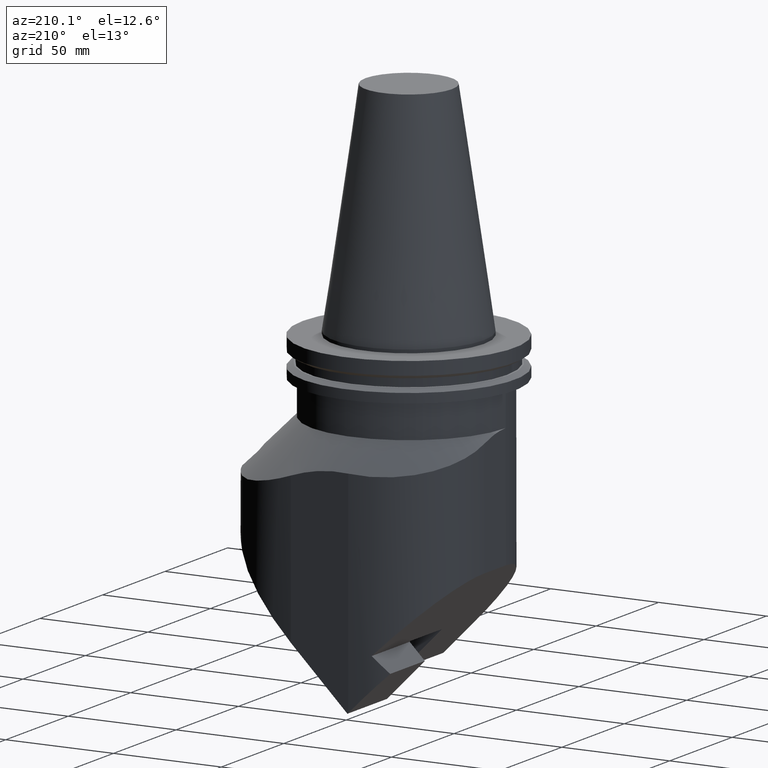
[diagram: clean part render]
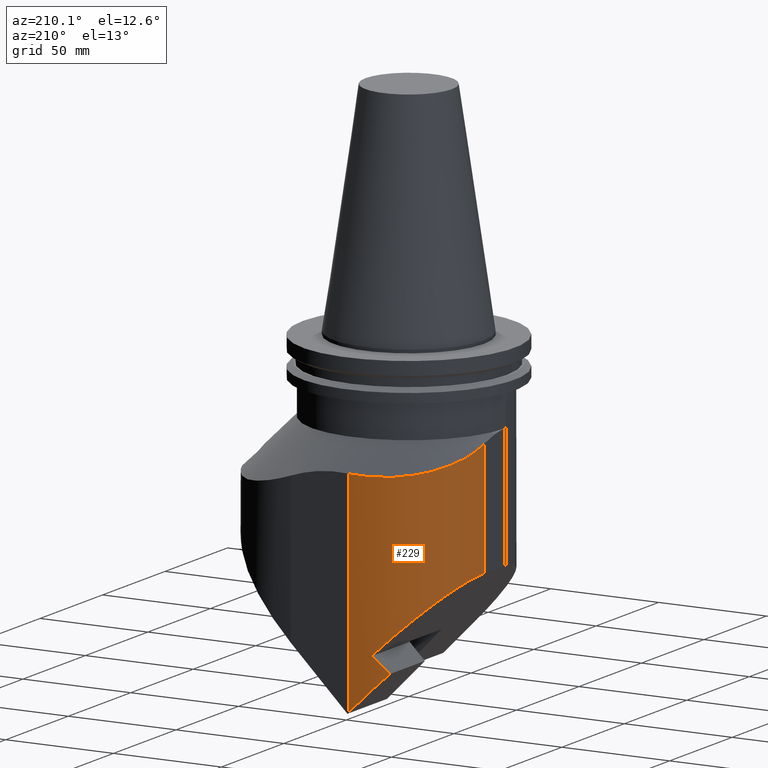
[diagram: same view with one face highlighted and labeled with its STEP entity id]
A machine part, auxiliary view. The second image highlights one B-rep face of the part: STEP entity #229.
In plain terms, the highlighted cylindrical surface (partial cylindrical patch) has radius 40 mm, axis along (-0, 0, 1).
Its self-contained STEP definition (entity closure, byte-faithful):
#145=EDGE_CURVE('Unnamed[1]',#400,#401,#402,.T.);
#158=EDGE_CURVE('Unnamed[1]',#401,#423,#424,.T.);
#218=EDGE_CURVE('Unnamed[1]',#423,#491,#511,.T.);
#220=EDGE_CURVE('Unnamed[1]',#385,#474,#513,.T.);
#229=ADVANCED_FACE('Unnamed[1]',(#524),#525,.T.);
#240=EDGE_CURVE('Unnamed[1]',#474,#491,#538,.T.);
#255=EDGE_CURVE('Unnamed[1]',#385,#400,#559,.T.);
#385=VERTEX_POINT('',#709);
#400=VERTEX_POINT('',#730);
#401=VERTEX_POINT('',#731);
#402=ELLIPSE('',#732,56.5685424481527,40.0);
#423=VERTEX_POINT('',#761);
#424=ELLIPSE('',#762,56.5685425032866,40.0);
#474=VERTEX_POINT('',#840);
#491=VERTEX_POINT('',#888);
#511=LINE('',#928,#929);
#513=LINE('',#932,#933);
#524=FACE_OUTER_BOUND('',#950,.T.);
#525=CYLINDRICAL_SURFACE('',#951,40.0);
#538=B_SPLINE_CURVE_WITH_KNOTS('',3,(#980,#981,#982,#983,#984,#985,#986,#987,#988,#989,#990,#991,#992,#993,#994,#995,#996,#997,#998,#999,#1000,#1001,#1002,#1003,#1004,#1005,#1006,#1007,#1008,#1009,#1010,#1011,#1012,#1013,#1014,#1015),.UNSPECIFIED.,.F.,.F.,(4,2,2,2,2,2,2,2,2,2,2,2,2,2,2,2,2,4),(49.8249751517833,53.7124989975215,57.6000228432597,61.4875466889979,65.3750705347361,69.2625943804743,73.1501182262125,77.0376420719508,80.925165917689,84.8126897634272,88.7002136091654,92.5877374549036,96.3861569452901,100.184576435677,103.982995926063,107.78141541645,111.579834906836,115.378254397223),.UNSPECIFIED.);
#559=ELLIPSE('',#1047,56.5685424949242,40.0);
#709=CARTESIAN_POINT('',(-4.999999999998,57.0,-145.600000000004));
#730=CARTESIAN_POINT('',(-22.2069588544695,53.1098403067713,-128.393041145533));
#731=CARTESIAN_POINT('',(-15.1358910394405,55.6944920219473,-121.321973342197));
#732=AXIS2_PLACEMENT_3D('',#1287,#1288,#1289);
#761=CARTESIAN_POINT('',(-44.9999999999966,17.0,-91.4578643728107));
#762=AXIS2_PLACEMENT_3D('',#1306,#1307,#1308);
#840=CARTESIAN_POINT('',(-4.99999999999801,57.0,-47.218878003681));
#888=CARTESIAN_POINT('',(-44.999999999998,17.0,-38.1040538832222));
#928=CARTESIAN_POINT('',(-44.999999999998,17.0,-306.209870642012));
#929=VECTOR('',#1389,1.0);
#932=CARTESIAN_POINT('',(-4.99999999999798,56.9999999999999,-306.209870642012));
#933=VECTOR('',#1390,1.0);
#950=EDGE_LOOP('',(#1397,#1398,#1399,#1400,#1401,#1402));
#951=AXIS2_PLACEMENT_3D('',#1403,#1404,#1405);
#980=CARTESIAN_POINT('',(-4.40626973575667,56.9955933119303,-47.1656616332161));
#981=CARTESIAN_POINT('',(-5.76712870551978,57.0157951163992,-47.2906969309906));
#982=CARTESIAN_POINT('',(-7.12660601409189,56.9662640778384,-47.3944755690024));
#983=CARTESIAN_POINT('',(-9.81804950965099,56.7317394081743,-47.5592427158982));
#984=CARTESIAN_POINT('',(-11.1501757868942,56.5467234916054,-47.6202392632312));
#985=CARTESIAN_POINT('',(-13.7628856880904,56.0509901993361,-47.7006424559277));
#986=CARTESIAN_POINT('',(-15.0434675382768,55.7402628338457,-47.7200451466702));
#987=CARTESIAN_POINT('',(-17.5298383810349,55.0089772918584,-47.7200451466702));
#988=CARTESIAN_POINT('',(-18.7747341153744,54.5769171324884,-47.7006424559277));
#989=CARTESIAN_POINT('',(-21.239798044042,53.5791875336219,-47.6202392632312));
#990=CARTESIAN_POINT('',(-22.4599701555355,53.0135274535038,-47.5592427158982));
#991=CARTESIAN_POINT('',(-24.8498118009833,51.7535564934607,-47.3944755690025));
#992=CARTESIAN_POINT('',(-26.0196279984941,51.0591776772915,-47.2906969309906));
#993=CARTESIAN_POINT('',(-28.2860767963145,49.5516662044288,-47.0406263354416));
#994=CARTESIAN_POINT('',(-29.3827117464047,48.7385372451752,-46.8943333851038));
#995=CARTESIAN_POINT('',(-31.4831133811026,47.0082669968052,-46.56094058224));
#996=CARTESIAN_POINT('',(-32.4879566509907,46.0902398826597,-46.3736669714299));
#997=CARTESIAN_POINT('',(-34.3904376035856,44.1667442794916,-45.9608460159773));
#998=CARTESIAN_POINT('',(-35.2880733628603,43.1612750735743,-45.7352931475345));
#999=CARTESIAN_POINT('',(-36.9638581019186,41.0850882665122,-45.2502524718009));
#1000=CARTESIAN_POINT('',(-37.7420980957379,40.0142504282025,-44.9907296007201));
#1001=CARTESIAN_POINT('',(-39.1716316001734,37.8326739586,-44.4435678211615));
#1002=CARTESIAN_POINT('',(-39.8229200200613,36.721934111679,-44.1559204593227));
#1003=CARTESIAN_POINT('',(-40.9826729224173,34.514725829955,-43.5668941228795));
#1004=CARTESIAN_POINT('',(-41.5134972013184,33.3815607975595,-43.2561406844293));
#1005=CARTESIAN_POINT('',(-42.4730730011786,31.0484807678146,-42.5974101794665));
#1006=CARTESIAN_POINT('',(-42.9018338114825,29.8485703459828,-42.2494304393417));
#1007=CARTESIAN_POINT('',(-43.6450197988469,27.4017888417412,-41.5193582062417));
#1008=CARTESIAN_POINT('',(-43.9594879857915,26.1548057442314,-41.1372274176845));
#1009=CARTESIAN_POINT('',(-44.4668692978473,23.6346363997587,-40.3428652678467));
#1010=CARTESIAN_POINT('',(-44.6597871870881,22.3614527702667,-39.930628645458));
#1011=CARTESIAN_POINT('',(-44.9217325026436,19.8105557877732,-39.0811230597881));
#1012=CARTESIAN_POINT('',(-44.9908644054839,18.5318419687409,-38.6435146795233));
#1013=CARTESIAN_POINT('',(-45.0074359778779,15.9896326450005,-37.7485300202418));
#1014=CARTESIAN_POINT('',(-44.9548759064806,14.726139468778,-37.2911471319575));
#1015=CARTESIAN_POINT('',(-44.8449043178896,13.4809660561361,-36.8273626108442));
#1047=AXIS2_PLACEMENT_3D('',#1428,#1429,#1430);
#1287=CARTESIAN_POINT('',(-4.99999999999801,17.0,-111.186082319515));
#1288=DIRECTION('',(0.707106780601909,-4.71027737475317E-016,-0.707106781771186));
#1289=DIRECTION('',(-0.707106781771186,2.43604851952972E-016,-0.707106780601909));
#1306=CARTESIAN_POINT('',(-4.99999999999801,17.0,-131.457864384636));
#1307=DIRECTION('',(0.707106781291082,-1.57009245938011E-016,0.707106781082013));
#1308=DIRECTION('',(-0.707106781082013,5.57623343192669E-016,0.707106781291082));
#1389=DIRECTION('',(-1.22464679914735E-016,2.22044604925031E-016,1.0));
#1390=DIRECTION('',(-1.22464679914735E-016,2.22044604925031E-016,1.0));
#1397=ORIENTED_EDGE('',*,*,#255,.T.);
#1398=ORIENTED_EDGE('',*,*,#145,.T.);
#1399=ORIENTED_EDGE('',*,*,#158,.T.);
#1400=ORIENTED_EDGE('',*,*,#218,.T.);
#1401=ORIENTED_EDGE('',*,*,#240,.F.);
#1402=ORIENTED_EDGE('',*,*,#220,.F.);
#1403=CARTESIAN_POINT('',(-4.99999999999799,16.9999999999999,-306.209870642012));
#1404=DIRECTION('',(-1.22464679914735E-016,2.22044604925031E-016,1.0));
#1405=DIRECTION('',(5.66553889764798E-016,1.0,-2.22044604925031E-016));
#1428=CARTESIAN_POINT('',(-4.99999999999801,17.0,-145.600000000004));
#1429=DIRECTION('',(0.707106781186552,-1.57009245868381E-016,0.707106781186543));
#1430=DIRECTION('',(-0.707106781186543,5.5762334322868E-016,0.707106781186552));